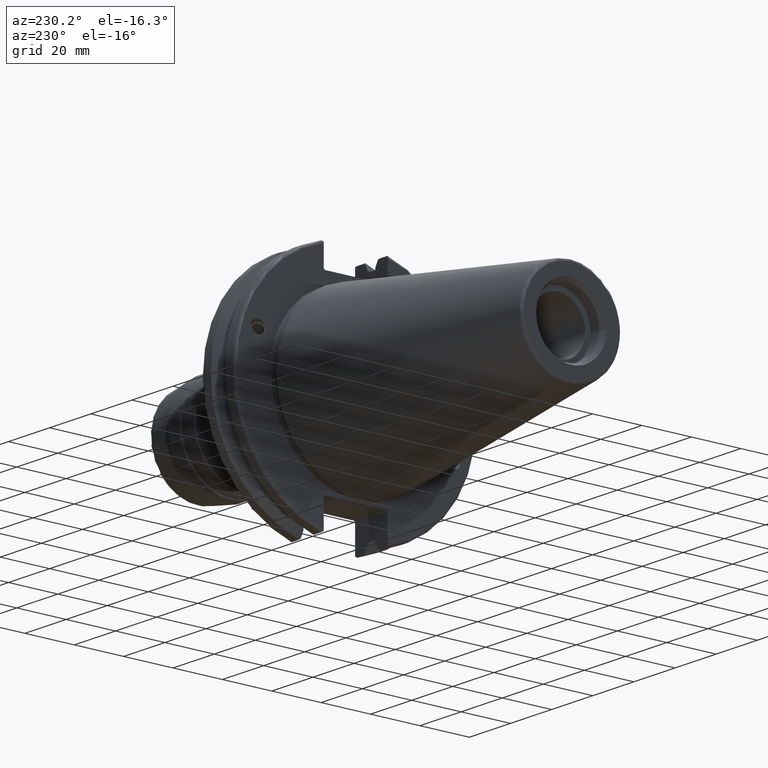
[diagram: clean part render]
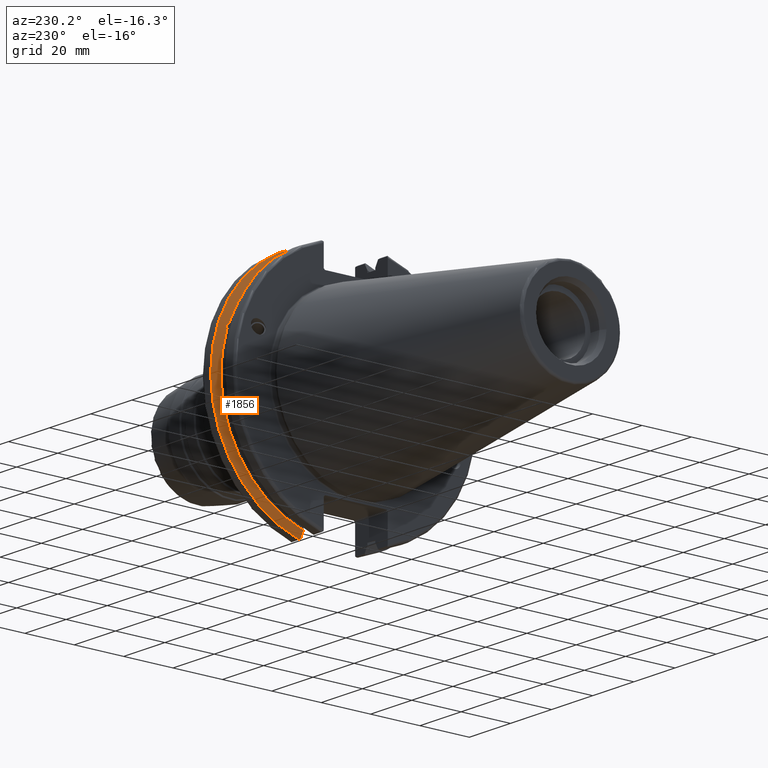
[diagram: same view with one face highlighted and labeled with its STEP entity id]
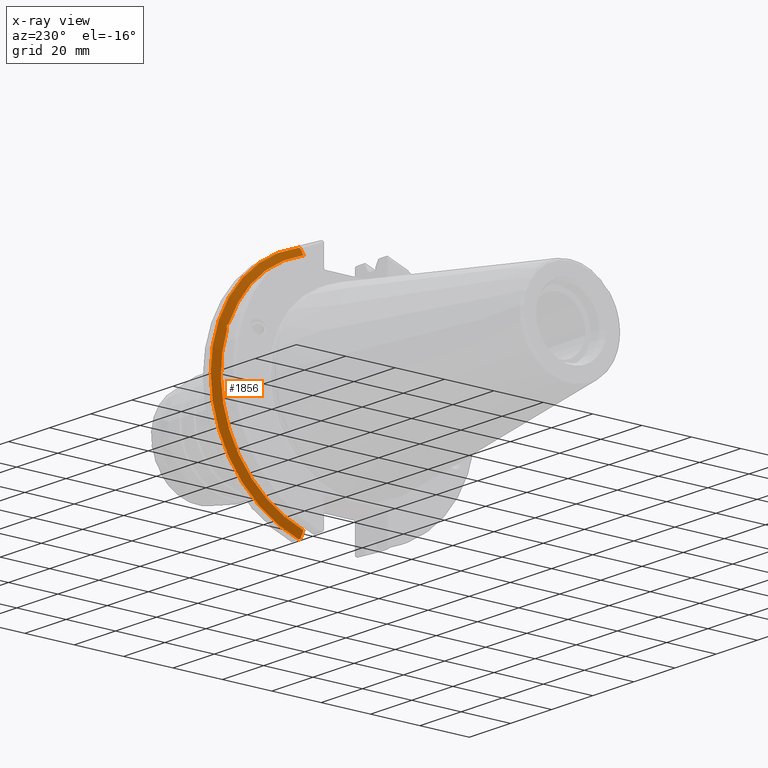
[diagram: x-ray of the same camera — body ghosted, the highlighted face saturated]
A machine part, auxiliary view. The second image highlights one B-rep face of the part: STEP entity #1856.
The next image is the same camera in x-ray: the body ghosted, the highlighted face saturated — about 0% of this face is hidden behind the body in this view.
In plain terms, the highlighted conical surface has half-angle 60 deg.
Its self-contained STEP definition (entity closure, byte-faithful):
#19=(
BOUNDED_CURVE()
B_SPLINE_CURVE(2,(#3431,#3432,#3433),.UNSPECIFIED.,.F.,.F.)
B_SPLINE_CURVE_WITH_KNOTS((3,3),(0.,0.27582391067312),.UNSPECIFIED.)
CURVE()
GEOMETRIC_REPRESENTATION_ITEM()
RATIONAL_B_SPLINE_CURVE((1.,1.00038235574463,1.0001287363678))
REPRESENTATION_ITEM('')
);
#20=(
BOUNDED_CURVE()
B_SPLINE_CURVE(2,(#3435,#3436,#3437),.UNSPECIFIED.,.F.,.F.)
B_SPLINE_CURVE_WITH_KNOTS((3,3),(0.,0.0648240472897789),.UNSPECIFIED.)
CURVE()
GEOMETRIC_REPRESENTATION_ITEM()
RATIONAL_B_SPLINE_CURVE((1.,1.00011477674848,1.00019140645968))
REPRESENTATION_ITEM('')
);
#21=(
BOUNDED_CURVE()
B_SPLINE_CURVE(2,(#3441,#3442,#3443),.UNSPECIFIED.,.F.,.F.)
B_SPLINE_CURVE_WITH_KNOTS((3,3),(0.325260944932466,0.390084992222202),
 .UNSPECIFIED.)
CURVE()
GEOMETRIC_REPRESENTATION_ITEM()
RATIONAL_B_SPLINE_CURVE((1.00019140645958,1.00011477674842,1.))
REPRESENTATION_ITEM('')
);
#22=(
BOUNDED_CURVE()
B_SPLINE_CURVE(2,(#3445,#3446,#3447),.UNSPECIFIED.,.F.,.F.)
B_SPLINE_CURVE_WITH_KNOTS((3,3),(0.0558332664531693,0.331657177124505),
 .UNSPECIFIED.)
CURVE()
GEOMETRIC_REPRESENTATION_ITEM()
RATIONAL_B_SPLINE_CURVE((1.00012873636717,1.00038235574273,1.))
REPRESENTATION_ITEM('')
);
#98=CONICAL_SURFACE('',#2073,47.8172386482472,1.0471975511966);
#144=B_SPLINE_CURVE_WITH_KNOTS('',3,(#3356,#3357,#3358,#3359,#3360,#3361,
#3362,#3363),.UNSPECIFIED.,.F.,.F.,(4,2,2,4),(0.426712868358719,0.441644498666905,
0.480313313223129,0.518982127779353),.UNSPECIFIED.);
#148=B_SPLINE_CURVE_WITH_KNOTS('',3,(#3418,#3419,#3420,#3421,#3422,#3423,
#3424,#3425),.UNSPECIFIED.,.F.,.F.,(4,2,2,4),(0.518982127779353,0.557650942335577,
0.5963197568918,0.611251387199989),.UNSPECIFIED.);
#215=FACE_OUTER_BOUND('',#332,.T.);
#332=EDGE_LOOP('',(#1485,#1486,#1487,#1488,#1489,#1490,#1491,#1492,#1493));
#688=CIRCLE('',#2074,46.4219772964944);
#689=CIRCLE('',#2075,49.2125);
#690=CIRCLE('',#2076,46.4219772964944);
#838=VERTEX_POINT('',#3353);
#839=VERTEX_POINT('',#3355);
#846=VERTEX_POINT('',#3416);
#847=VERTEX_POINT('',#3428);
#848=VERTEX_POINT('',#3430);
#849=VERTEX_POINT('',#3434);
#850=VERTEX_POINT('',#3438);
#851=VERTEX_POINT('',#3440);
#852=VERTEX_POINT('',#3444);
#1071=EDGE_CURVE('',#839,#838,#144,.T.);
#1079=EDGE_CURVE('',#838,#846,#148,.T.);
#1080=EDGE_CURVE('',#846,#847,#688,.T.);
#1081=EDGE_CURVE('',#847,#848,#19,.T.);
#1082=EDGE_CURVE('',#849,#848,#20,.T.);
#1083=EDGE_CURVE('',#850,#849,#689,.T.);
#1084=EDGE_CURVE('',#851,#850,#21,.T.);
#1085=EDGE_CURVE('',#851,#852,#22,.T.);
#1086=EDGE_CURVE('',#852,#839,#690,.T.);
#1485=ORIENTED_EDGE('',*,*,#1071,.T.);
#1486=ORIENTED_EDGE('',*,*,#1079,.T.);
#1487=ORIENTED_EDGE('',*,*,#1080,.T.);
#1488=ORIENTED_EDGE('',*,*,#1081,.T.);
#1489=ORIENTED_EDGE('',*,*,#1082,.F.);
#1490=ORIENTED_EDGE('',*,*,#1083,.F.);
#1491=ORIENTED_EDGE('',*,*,#1084,.F.);
#1492=ORIENTED_EDGE('',*,*,#1085,.T.);
#1493=ORIENTED_EDGE('',*,*,#1086,.T.);
#1856=ADVANCED_FACE('',(#215),#98,.T.);
#2073=AXIS2_PLACEMENT_3D('',#3427,#2495,#2496);
#2074=AXIS2_PLACEMENT_3D('',#3429,#2497,#2498);
#2075=AXIS2_PLACEMENT_3D('',#3439,#2499,#2500);
#2076=AXIS2_PLACEMENT_3D('',#3448,#2501,#2502);
#2495=DIRECTION('center_axis',(1.,0.,0.));
#2496=DIRECTION('ref_axis',(0.,1.,0.));
#2497=DIRECTION('center_axis',(1.,0.,0.));
#2498=DIRECTION('ref_axis',(0.,0.,-1.));
#2499=DIRECTION('center_axis',(1.,0.,0.));
#2500=DIRECTION('ref_axis',(0.,0.,-1.));
#2501=DIRECTION('center_axis',(1.,0.,0.));
#2502=DIRECTION('ref_axis',(0.,0.,-1.));
#3353=CARTESIAN_POINT('',(13.2341,43.923494649906,15.9868446375166));
#3355=CARTESIAN_POINT('',(13.0491,43.9096390749305,15.0646464421033));
#3356=CARTESIAN_POINT('Ctrl Pts',(13.0491,43.9096390749305,15.0646464421033));
#3357=CARTESIAN_POINT('Ctrl Pts',(13.0660815609661,43.9250360001461,15.1104047527575));
#3358=CARTESIAN_POINT('Ctrl Pts',(13.0821132459668,43.9385582852181,15.1564111356409));
#3359=CARTESIAN_POINT('Ctrl Pts',(13.1358132615496,43.9797830409459,15.3217566390709));
#3360=CARTESIAN_POINT('Ctrl Pts',(13.1719838933644,43.9989016655819,15.4570249042868));
#3361=CARTESIAN_POINT('Ctrl Pts',(13.2212913174802,43.9931221605126,15.7289849146254));
#3362=CARTESIAN_POINT('Ctrl Pts',(13.2341,43.9675796948952,15.8657219718732));
#3363=CARTESIAN_POINT('Ctrl Pts',(13.2341,43.923494649906,15.9868446375166));
#3416=CARTESIAN_POINT('',(13.0491,43.3201030900029,16.684383248648));
#3418=CARTESIAN_POINT('Ctrl Pts',(13.2341,43.923494649906,15.9868446375166));
#3419=CARTESIAN_POINT('Ctrl Pts',(13.2341,43.8794096049169,16.10796730316));
#3420=CARTESIAN_POINT('Ctrl Pts',(13.2212913174802,43.8110833825828,16.2291323464527));
#3421=CARTESIAN_POINT('Ctrl Pts',(13.1719838933644,43.6406982153492,16.441180795372));
#3422=CARTESIAN_POINT('Ctrl Pts',(13.1358132615496,43.5391037343221,16.5325130832406));
#3423=CARTESIAN_POINT('Ctrl Pts',(13.0821132459668,43.4012416983557,16.6326763251437));
#3424=CARTESIAN_POINT('Ctrl Pts',(13.0660815609661,43.3613106941341,16.6592273018006));
#3425=CARTESIAN_POINT('Ctrl Pts',(13.0491,43.3201030900029,16.684383248648));
#3427=CARTESIAN_POINT('Origin',(13.8546545170244,0.,0.));
#3428=CARTESIAN_POINT('',(13.0491,12.95,44.5791147973604));
#3429=CARTESIAN_POINT('Origin',(13.0491,0.,0.));
#3430=CARTESIAN_POINT('',(14.3818103943757,12.95,46.9780755322918));
#3431=CARTESIAN_POINT('Ctrl Pts',(13.0491,12.95,44.5791147973604));
#3432=CARTESIAN_POINT('Ctrl Pts',(13.6979955094656,12.95,45.7494966802583));
#3433=CARTESIAN_POINT('Ctrl Pts',(14.3818103943757,12.95,46.9780755322918));
#3434=CARTESIAN_POINT('',(14.6602090340487,13.4317035994433,47.3440544806494));
#3435=CARTESIAN_POINT('Ctrl Pts',(14.6602090340487,13.4317035994433,47.3440544806494));
#3436=CARTESIAN_POINT('Ctrl Pts',(14.5199310333618,13.1896660169966,47.1601640966264));
#3437=CARTESIAN_POINT('Ctrl Pts',(14.3818103943757,12.95,46.9780755322918));
#3438=CARTESIAN_POINT('',(14.6602090340487,13.4317035994433,-47.3440544806494));
#3439=CARTESIAN_POINT('Origin',(14.6602090340487,0.,0.));
#3440=CARTESIAN_POINT('',(14.3818103943757,12.95,-46.9780755322918));
#3441=CARTESIAN_POINT('Ctrl Pts',(14.3818103943757,12.95,-46.9780755322918));
#3442=CARTESIAN_POINT('Ctrl Pts',(14.5199310333618,13.1896660169966,-47.1601640966264));
#3443=CARTESIAN_POINT('Ctrl Pts',(14.6602090340487,13.4317035994433,-47.3440544806494));
#3444=CARTESIAN_POINT('',(13.0491,12.95,-44.5791147973605));
#3445=CARTESIAN_POINT('Ctrl Pts',(14.3818103943757,12.95,-46.9780755322918));
#3446=CARTESIAN_POINT('Ctrl Pts',(13.6979955094864,12.95,-45.7494966802956));
#3447=CARTESIAN_POINT('Ctrl Pts',(13.0491,12.95,-44.5791147973604));
#3448=CARTESIAN_POINT('Origin',(13.0491,0.,0.));